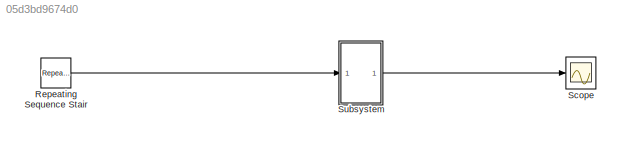
MODEL slx_05d3bd9674d0
KIND model
CONFIG AbsTol = auto
CONFIG EnableMultiTasking = off
CONFIG FixedStep = auto
CONFIG MaxStep = auto
CONFIG MinStep = auto
CONFIG RelTol = 1e-3
CONFIG SampleTimeConstraint = Unconstrained
CONFIG SolverName = VariableStepAuto
CONFIG StartTime = 0.0
CONFIG StopTime = 10.0
BLOCK [Reference] Repeating Sequence Stair  REF=simulink/Sources/Repeating
Sequence
Stair
  Ports = [0, 1]
  SourceBlock = simulink/Sources/Repeating\nSequence\nStair
  SourceProductBaseCode = SL
  SourceType = Repeating Sequence Stair
BLOCK [Scope] Scope
  Floating = off
  NumInputPorts = 1
  Ports = [1]
  ScopeSpecificationString = Simulink.scopes.TimeScopeBlockCfg('CurrentConfiguration', extmgr.ConfigurationSet(extmgr.Configuration('Core','General UI',true),extmgr.Configuration('Core','Source UI',true),extmgr.Configuration('Sources','WiredSimulink',true),extmgr.Configuration('Visuals','Time Domain',true,'SerializedDisplays',{struct('MinYLimReal','-6.875','MaxYLimReal','11.875','YLabelReal','','MinYLimMag','0.00000','MaxYLim...<+1350ch>
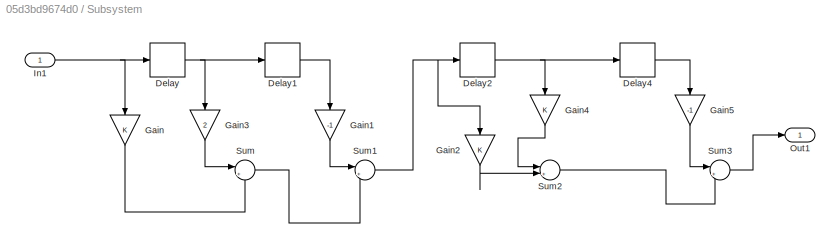
BLOCK [SubSystem] Subsystem
  Ports = [1, 1]
  RequestExecContextInheritance = off
  TreatAsAtomicUnit = on
BLOCK [Delay] Subsystem/Delay
  DelayLength = 1
  InputPortMap = u0
  Ports = [1, 1]
BLOCK [Delay] Subsystem/Delay1
  DelayLength = 1
  InputPortMap = u0
  Ports = [1, 1]
BLOCK [Delay] Subsystem/Delay2
  DelayLength = 1
  InputPortMap = u0
  Ports = [1, 1]
BLOCK [Delay] Subsystem/Delay4
  DelayLength = 1
  InputPortMap = u0
  Ports = [1, 1]
BLOCK [Gain] Subsystem/Gain
  NameLocation = left
BLOCK [Gain] Subsystem/Gain1
  Gain = -1
  NameLocation = left
BLOCK [Gain] Subsystem/Gain2
  NameLocation = left
BLOCK [Gain] Subsystem/Gain3
  Gain = 2
  NameLocation = left
BLOCK [Gain] Subsystem/Gain4
  NameLocation = left
BLOCK [Gain] Subsystem/Gain5
  Gain = -1
  NameLocation = left
BLOCK [Inport] Subsystem/In1
BLOCK [Outport] Subsystem/Out1
BLOCK [Sum] Subsystem/Sum
  Inputs = |++
  Ports = [2, 1]
BLOCK [Sum] Subsystem/Sum1
  Inputs = |++
  Ports = [2, 1]
BLOCK [Sum] Subsystem/Sum2
  Inputs = |++
  Ports = [2, 1]
BLOCK [Sum] Subsystem/Sum3
  Inputs = |++
  Ports = [2, 1]
LINE Repeating Sequence Stair:1 -> Subsystem:1
LINE Subsystem/Delay1:1 -> Subsystem/Gain1:1
NET Subsystem/Delay2:1 -> Subsystem/Delay4:1, Subsystem/Gain4:1
LINE Subsystem/Delay4:1 -> Subsystem/Gain5:1
NET Subsystem/Delay:1 -> Subsystem/Delay1:1, Subsystem/Gain3:1
LINE Subsystem/Gain1:1 -> Subsystem/Sum1:1
LINE Subsystem/Gain2:1 -> Subsystem/Sum2:2
LINE Subsystem/Gain3:1 -> Subsystem/Sum:1
LINE Subsystem/Gain4:1 -> Subsystem/Sum2:1
LINE Subsystem/Gain5:1 -> Subsystem/Sum3:1
LINE Subsystem/Gain:1 -> Subsystem/Sum:2
NET Subsystem/In1:1 -> Subsystem/Delay:1, Subsystem/Gain:1
NET Subsystem/Sum1:1 -> Subsystem/Delay2:1, Subsystem/Gain2:1
LINE Subsystem/Sum2:1 -> Subsystem/Sum3:2
LINE Subsystem/Sum3:1 -> Subsystem/Out1:1
LINE Subsystem/Sum:1 -> Subsystem/Sum1:2
LINE Subsystem:1 -> Scope:1
note: NET lines group one-source signal fan-out (src -> all destinations, sorted); 1:1 wires keep LINE
